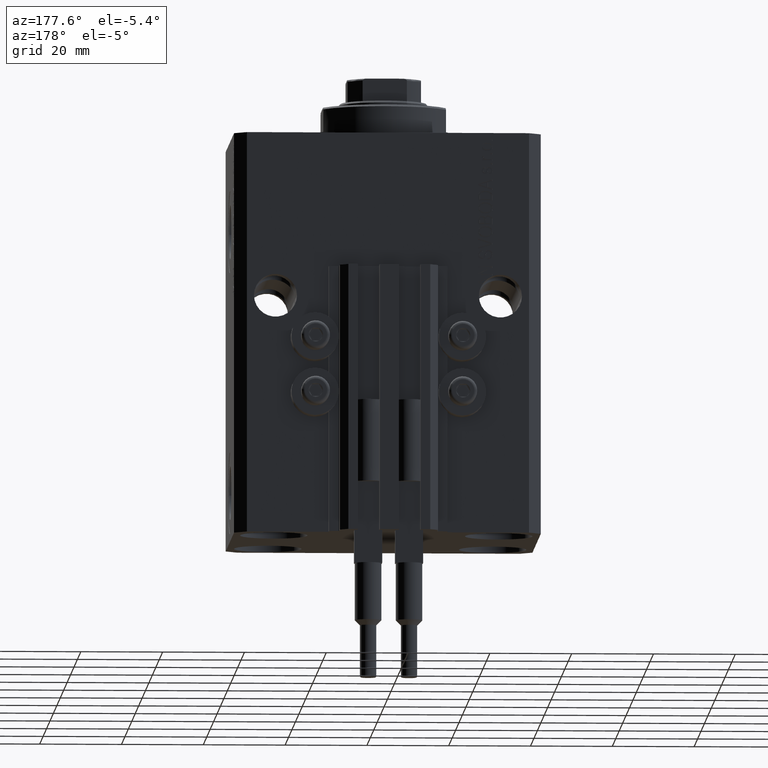
[diagram: clean part render]
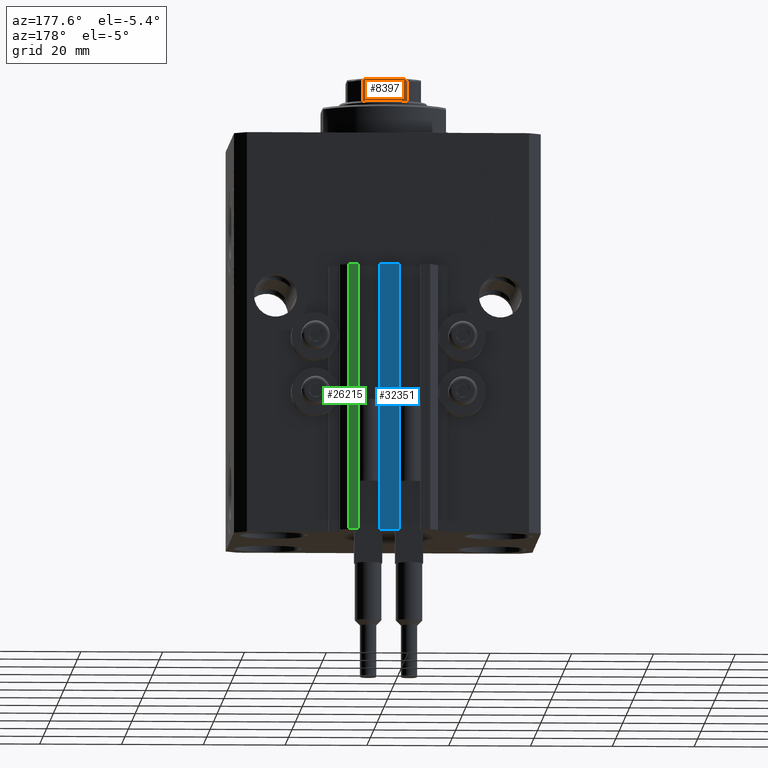
[diagram: same view with three faces highlighted in distinct colors, each labeled with its STEP entity id]
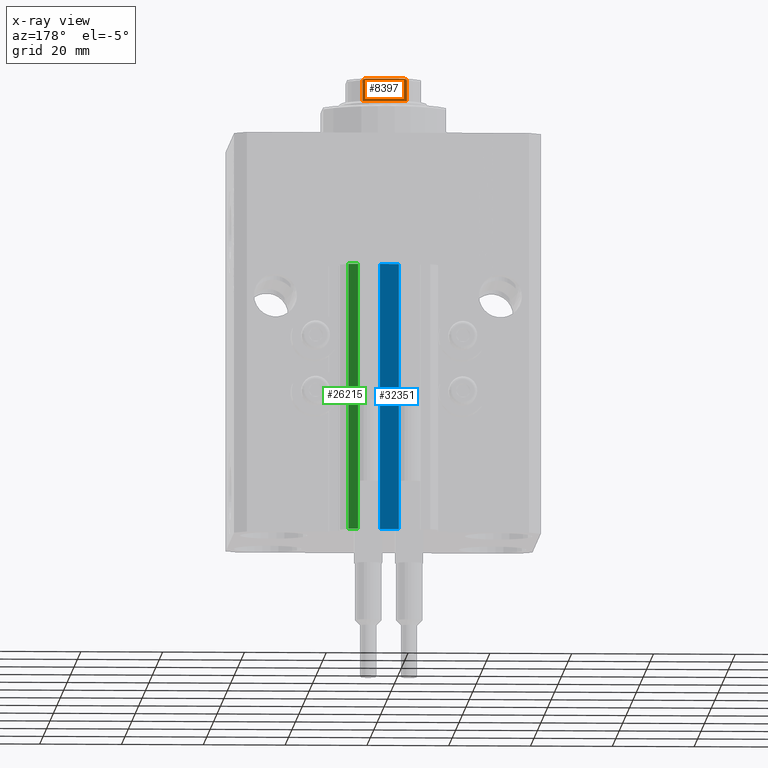
[diagram: x-ray of the same camera — body ghosted, the three highlighted faces saturated]
A machine part, auxiliary view with three faces highlighted in distinct colors.
The next image is the same camera in x-ray (body ghosted, the three faces saturated) — at least one of them is partly hidden behind the body in this view.
Their STEP definitions:

[orange] entity #8397 — the highlighted planar face has unit normal (0, -1, 0).
#708 = B_SPLINE_CURVE_WITH_KNOTS ( 'NONE', 3,
 ( #31251, #8113, #38319, #46111, #35148, #42211, #12732, #1058, #38807, #4942 ),
 .UNSPECIFIED., .F., .F.,
 ( 4, 2, 2, 2, 4 ),
 ( 0.000000000000000000, 0.0001582447020888231800, 0.0003164894041776463601, 0.0006329788083552646393, 0.001265957616710501089 ),
 .UNSPECIFIED. ) ;
#1058 = CARTESIAN_POINT ( 'NONE',  ( -4.778533838065923689, 8.999999999999998224, 103.0778291476469661 ) ) ;
#1096 = DIRECTION ( 'NONE',  ( -1.000000000000000000, -0.000000000000000000, -0.000000000000000000 ) ) ;
#1419 = VERTEX_POINT ( 'NONE', #16922 ) ;
#4942 = CARTESIAN_POINT ( 'NONE',  ( -4.358898943540678417, 8.999999999999998224, 103.0999999999999943 ) ) ;
#5106 = VERTEX_POINT ( 'NONE', #43547 ) ;
#5246 = B_SPLINE_CURVE_WITH_KNOTS ( 'NONE', 3,
 ( #16974, #28175, #31823, #46688, #42555, #35002, #9171, #25006, #38901, #6252 ),
 .UNSPECIFIED., .F., .F.,
 ( 4, 2, 2, 2, 4 ),
 ( 8.673617379884035472E-19, 0.0006221106941441109433, 0.0009331660412161594219, 0.001088693714752182740, 0.001244221388288205840 ),
 .UNSPECIFIED. ) ;
#5913 = VECTOR ( 'NONE', #46182, 1000.000000000000000 ) ;
#6252 = CARTESIAN_POINT ( 'NONE',  ( 5.408326913195989682, 8.999999999999998224, 102.5999999999999943 ) ) ;
#7632 = ORIENTED_EDGE ( 'NONE', *, *, #38409, .T. ) ;
#8113 = CARTESIAN_POINT ( 'NONE',  ( -5.408326913195988794, 8.999999999999998224, 102.6535720727334962 ) ) ;
#8331 = VERTEX_POINT ( 'NONE', #34657 ) ;
#8397 = ADVANCED_FACE ( 'NONE', ( #36095 ), #39993, .F. ) ;
#9171 = CARTESIAN_POINT ( 'NONE',  ( 5.335288102212754069, 8.999999999999996447, 102.7956905402761976 ) ) ;
#10275 = CARTESIAN_POINT ( 'NONE',  ( -9.000000000000000000, 8.999999999999998224, 103.0999999999999943 ) ) ;
#11795 = EDGE_CURVE ( 'NONE', #15571, #24802, #708, .T. ) ;
#12601 = EDGE_CURVE ( 'NONE', #8331, #5106, #13288, .T. ) ;
#12732 = CARTESIAN_POINT ( 'NONE',  ( -5.077896145217239088, 9.000000000000000000, 102.9773016776067038 ) ) ;
#13288 = LINE ( 'NONE', #35462, #5913 ) ;
#13618 = VERTEX_POINT ( 'NONE', #15939 ) ;
#15571 = VERTEX_POINT ( 'NONE', #33140 ) ;
#15939 = CARTESIAN_POINT ( 'NONE',  ( 4.358898943540677529, 8.999999999999998224, 103.0999999999999943 ) ) ;
#16408 = ORIENTED_EDGE ( 'NONE', *, *, #37112, .T. ) ;
#16922 = CARTESIAN_POINT ( 'NONE',  ( -5.408326913195986130, 8.999999999999998224, 97.60000000000000853 ) ) ;
#16974 = CARTESIAN_POINT ( 'NONE',  ( 4.358898943540677529, 8.999999999999998224, 103.0999999999999943 ) ) ;
#17075 = DIRECTION ( 'NONE',  ( -1.000000000000000000, -0.000000000000000000, -0.000000000000000000 ) ) ;
#18814 = ORIENTED_EDGE ( 'NONE', *, *, #22575, .T. ) ;
#20799 = LINE ( 'NONE', #31517, #44311 ) ;
#21714 = DIRECTION ( 'NONE',  ( 0.000000000000000000, -1.000000000000000000, 0.000000000000000000 ) ) ;
#22575 = EDGE_CURVE ( 'NONE', #1419, #15571, #20799, .T. ) ;
#22627 = VECTOR ( 'NONE', #17075, 1000.000000000000000 ) ;
#24707 = ORIENTED_EDGE ( 'NONE', *, *, #11795, .T. ) ;
#24802 = VERTEX_POINT ( 'NONE', #31223 ) ;
#25006 = CARTESIAN_POINT ( 'NONE',  ( 5.390945448132526074, 8.999999999999998224, 102.7054816538970528 ) ) ;
#25177 = DIRECTION ( 'NONE',  ( -0.000000000000000000, -0.000000000000000000, 1.000000000000000000 ) ) ;
#27045 = EDGE_LOOP ( 'NONE', ( #38819, #7632, #42643, #16408, #18814, #24707 ) ) ;
#28175 = CARTESIAN_POINT ( 'NONE',  ( 4.569272810556668674, 9.000000000000000000, 103.0999999999999943 ) ) ;
#29105 = EDGE_CURVE ( 'NONE', #13618, #24802, #41776, .T. ) ;
#29255 = AXIS2_PLACEMENT_3D ( 'NONE', #10275, #21714, #43889 ) ;
#31223 = CARTESIAN_POINT ( 'NONE',  ( -4.358898943540678417, 8.999999999999998224, 103.0999999999999943 ) ) ;
#31251 = CARTESIAN_POINT ( 'NONE',  ( -5.408326913195988794, 8.999999999999998224, 102.5999999999999943 ) ) ;
#31517 = CARTESIAN_POINT ( 'NONE',  ( -5.408326913195988794, 8.999999999999998224, -0.001000000000001000089 ) ) ;
#31823 = CARTESIAN_POINT ( 'NONE',  ( 4.775913644518301027, 8.999999999999998224, 103.0781460743083073 ) ) ;
#33140 = CARTESIAN_POINT ( 'NONE',  ( -5.408326913195988794, 8.999999999999998224, 102.5999999999999943 ) ) ;
#34463 = CARTESIAN_POINT ( 'NONE',  ( -9.000000000000000000, 8.999999999999998224, 103.0999999999999943 ) ) ;
#34657 = CARTESIAN_POINT ( 'NONE',  ( 5.408326913195989682, 8.999999999999998224, 97.60000000000000853 ) ) ;
#35002 = CARTESIAN_POINT ( 'NONE',  ( 5.297634495023393342, 8.999999999999998224, 102.8344228052779954 ) ) ;
#35148 = CARTESIAN_POINT ( 'NONE',  ( -5.298186678102094760, 8.999999999999998224, 102.8338781215004758 ) ) ;
#35462 = CARTESIAN_POINT ( 'NONE',  ( 5.408326913195989682, 8.999999999999998224, -0.001000000000001000089 ) ) ;
#36064 = LINE ( 'NONE', #43617, #22627 ) ;
#36095 = FACE_OUTER_BOUND ( 'NONE', #27045, .T. ) ;
#37112 = EDGE_CURVE ( 'NONE', #8331, #1419, #36064, .T. ) ;
#38319 = CARTESIAN_POINT ( 'NONE',  ( -5.390954572107327536, 8.999999999999996447, 102.7053628521399986 ) ) ;
#38409 = EDGE_CURVE ( 'NONE', #13618, #5106, #5246, .T. ) ;
#38807 = CARTESIAN_POINT ( 'NONE',  ( -4.569278586016989330, 8.999999999999996447, 103.0999999999999943 ) ) ;
#38819 = ORIENTED_EDGE ( 'NONE', *, *, #29105, .F. ) ;
#38901 = CARTESIAN_POINT ( 'NONE',  ( 5.408326913195986130, 8.999999999999998224, 102.6537434673188045 ) ) ;
#39993 = PLANE ( 'NONE',  #29255 ) ;
#41776 = LINE ( 'NONE', #34463, #47372 ) ;
#42211 = CARTESIAN_POINT ( 'NONE',  ( -5.174818616237128133, 9.000000000000000000, 102.9325218846533403 ) ) ;
#42555 = CARTESIAN_POINT ( 'NONE',  ( 5.173732970196573966, 9.000000000000000000, 102.9331808643799064 ) ) ;
#42643 = ORIENTED_EDGE ( 'NONE', *, *, #12601, .F. ) ;
#43547 = CARTESIAN_POINT ( 'NONE',  ( 5.408326913195989682, 8.999999999999998224, 102.5999999999999943 ) ) ;
#43617 = CARTESIAN_POINT ( 'NONE',  ( -9.000000000000000000, 8.999999999999998224, 97.59999999999999432 ) ) ;
#43889 = DIRECTION ( 'NONE',  ( 0.000000000000000000, -0.000000000000000000, -1.000000000000000000 ) ) ;
#44311 = VECTOR ( 'NONE', #25177, 1000.000000000000000 ) ;
#46111 = CARTESIAN_POINT ( 'NONE',  ( -5.335664150027726649, 8.999999999999998224, 102.7951843380012491 ) ) ;
#46182 = DIRECTION ( 'NONE',  ( -0.000000000000000000, -0.000000000000000000, 1.000000000000000000 ) ) ;
#46688 = CARTESIAN_POINT ( 'NONE',  ( 5.074490744525480324, 9.000000000000000000, 102.9787200784332555 ) ) ;
#47372 = VECTOR ( 'NONE', #1096, 1000.000000000000000 ) ;

[blue] entity #32351 — the highlighted planar face has unit normal (0, -1, 0).
#1154 = LINE ( 'NONE', #39381, #20423 ) ;
#1180 = EDGE_CURVE ( 'NONE', #45274, #10467, #1154, .T. ) ;
#2065 = DIRECTION ( 'NONE',  ( 1.000000000000000000, 0.000000000000000000, 0.000000000000000000 ) ) ;
#2301 = CARTESIAN_POINT ( 'NONE',  ( -2.350000000000003642, 35.50000000000001421, -33.00000000000000000 ) ) ;
#3144 = AXIS2_PLACEMENT_3D ( 'NONE', #13223, #8605, #20543 ) ;
#4735 = DIRECTION ( 'NONE',  ( 0.000000000000000000, 0.000000000000000000, 1.000000000000000000 ) ) ;
#4850 = VERTEX_POINT ( 'NONE', #12440 ) ;
#5128 = DIRECTION ( 'NONE',  ( 1.000000000000000000, 0.000000000000000000, 0.000000000000000000 ) ) ;
#5624 = ORIENTED_EDGE ( 'NONE', *, *, #1180, .T. ) ;
#5914 = ORIENTED_EDGE ( 'NONE', *, *, #41272, .F. ) ;
#8386 = CARTESIAN_POINT ( 'NONE',  ( 2.349999999999999645, 35.50000000000001421, -98.00000000000000000 ) ) ;
#8605 = DIRECTION ( 'NONE',  ( 0.000000000000000000, -1.000000000000000000, 0.000000000000000000 ) ) ;
#10467 = VERTEX_POINT ( 'NONE', #28375 ) ;
#12440 = CARTESIAN_POINT ( 'NONE',  ( 2.349999999999999645, 35.50000000000001421, -98.00000000000000000 ) ) ;
#13223 = CARTESIAN_POINT ( 'NONE',  ( -2.350000000000003642, 35.50000000000001421, -98.00000000000000000 ) ) ;
#15332 = ORIENTED_EDGE ( 'NONE', *, *, #42476, .T. ) ;
#16730 = DIRECTION ( 'NONE',  ( 0.000000000000000000, 0.000000000000000000, 1.000000000000000000 ) ) ;
#17130 = PLANE ( 'NONE',  #3144 ) ;
#18805 = VECTOR ( 'NONE', #5128, 1000.000000000000000 ) ;
#19471 = CARTESIAN_POINT ( 'NONE',  ( 2.349999999999999645, 35.50000000000001421, -33.00000000000000000 ) ) ;
#20423 = VECTOR ( 'NONE', #16730, 1000.000000000000000 ) ;
#20543 = DIRECTION ( 'NONE',  ( 0.000000000000000000, -0.000000000000000000, -1.000000000000000000 ) ) ;
#22025 = VECTOR ( 'NONE', #4735, 1000.000000000000000 ) ;
#22651 = EDGE_LOOP ( 'NONE', ( #15332, #5914, #25197, #5624 ) ) ;
#25197 = ORIENTED_EDGE ( 'NONE', *, *, #34382, .F. ) ;
#26204 = LINE ( 'NONE', #8386, #22025 ) ;
#28375 = CARTESIAN_POINT ( 'NONE',  ( -2.350000000000003642, 35.50000000000001421, -33.00000000000000000 ) ) ;
#31430 = CARTESIAN_POINT ( 'NONE',  ( -2.350000000000003642, 35.50000000000001421, -98.00000000000000000 ) ) ;
#32351 = ADVANCED_FACE ( 'NONE', ( #38327 ), #17130, .F. ) ;
#34382 = EDGE_CURVE ( 'NONE', #45274, #4850, #38506, .T. ) ;
#35343 = VERTEX_POINT ( 'NONE', #19471 ) ;
#35672 = LINE ( 'NONE', #2301, #45389 ) ;
#38327 = FACE_OUTER_BOUND ( 'NONE', #22651, .T. ) ;
#38506 = LINE ( 'NONE', #31430, #18805 ) ;
#39381 = CARTESIAN_POINT ( 'NONE',  ( -2.350000000000003642, 35.50000000000001421, -98.00000000000000000 ) ) ;
#41272 = EDGE_CURVE ( 'NONE', #4850, #35343, #26204, .T. ) ;
#42476 = EDGE_CURVE ( 'NONE', #10467, #35343, #35672, .T. ) ;
#43636 = CARTESIAN_POINT ( 'NONE',  ( -2.350000000000003642, 35.50000000000001421, -98.00000000000000000 ) ) ;
#45274 = VERTEX_POINT ( 'NONE', #43636 ) ;
#45389 = VECTOR ( 'NONE', #2065, 1000.000000000000000 ) ;

[green] entity #26215 — the highlighted planar face has unit normal (0, 1, 0).
#560 = EDGE_CURVE ( 'NONE', #6698, #37470, #10135, .T. ) ;
#628 = ORIENTED_EDGE ( 'NONE', *, *, #13638, .F. ) ;
#635 = EDGE_CURVE ( 'NONE', #37470, #40480, #40821, .T. ) ;
#754 = VERTEX_POINT ( 'NONE', #8149 ) ;
#825 = AXIS2_PLACEMENT_3D ( 'NONE', #45347, #33663, #7835 ) ;
#3062 = CARTESIAN_POINT ( 'NONE',  ( 7.649999999999998579, 35.50000000000001421, -98.00000000000000000 ) ) ;
#3361 = CARTESIAN_POINT ( 'NONE',  ( 7.649999999999998579, 35.50000000000001421, -98.00000000000000000 ) ) ;
#5955 = VECTOR ( 'NONE', #19601, 1000.000000000000000 ) ;
#6698 = VERTEX_POINT ( 'NONE', #25554 ) ;
#7835 = DIRECTION ( 'NONE',  ( 0.000000000000000000, 0.000000000000000000, 1.000000000000000000 ) ) ;
#8149 = CARTESIAN_POINT ( 'NONE',  ( 9.999999999999998224, 35.50000000000001421, -33.00000000000000000 ) ) ;
#10135 = LINE ( 'NONE', #42125, #22748 ) ;
#11192 = EDGE_CURVE ( 'NONE', #754, #40480, #18207, .T. ) ;
#13298 = CARTESIAN_POINT ( 'NONE',  ( 7.649999999999998579, 35.50000000000001421, -33.00000000000000000 ) ) ;
#13638 = EDGE_CURVE ( 'NONE', #6698, #754, #30797, .T. ) ;
#14546 = DIRECTION ( 'NONE',  ( -1.000000000000000000, 0.000000000000000000, 0.000000000000000000 ) ) ;
#16064 = EDGE_LOOP ( 'NONE', ( #42039, #628, #26678, #16880 ) ) ;
#16067 = DIRECTION ( 'NONE',  ( -1.000000000000000000, 0.000000000000000000, 0.000000000000000000 ) ) ;
#16880 = ORIENTED_EDGE ( 'NONE', *, *, #635, .T. ) ;
#18072 = VECTOR ( 'NONE', #18662, 1000.000000000000000 ) ;
#18207 = LINE ( 'NONE', #33052, #22984 ) ;
#18662 = DIRECTION ( 'NONE',  ( 0.000000000000000000, 0.000000000000000000, 1.000000000000000000 ) ) ;
#18819 = PLANE ( 'NONE',  #825 ) ;
#19601 = DIRECTION ( 'NONE',  ( 0.000000000000000000, 0.000000000000000000, 1.000000000000000000 ) ) ;
#22748 = VECTOR ( 'NONE', #16067, 1000.000000000000000 ) ;
#22984 = VECTOR ( 'NONE', #14546, 1000.000000000000000 ) ;
#25554 = CARTESIAN_POINT ( 'NONE',  ( 9.999999999999998224, 35.50000000000001421, -98.00000000000000000 ) ) ;
#26215 = ADVANCED_FACE ( 'NONE', ( #41213 ), #18819, .T. ) ;
#26678 = ORIENTED_EDGE ( 'NONE', *, *, #560, .T. ) ;
#30797 = LINE ( 'NONE', #45663, #5955 ) ;
#33052 = CARTESIAN_POINT ( 'NONE',  ( 9.999999999999998224, 35.50000000000001421, -33.00000000000000000 ) ) ;
#33663 = DIRECTION ( 'NONE',  ( 0.000000000000000000, 1.000000000000000000, -0.000000000000000000 ) ) ;
#37470 = VERTEX_POINT ( 'NONE', #3361 ) ;
#40480 = VERTEX_POINT ( 'NONE', #13298 ) ;
#40821 = LINE ( 'NONE', #3062, #18072 ) ;
#41213 = FACE_OUTER_BOUND ( 'NONE', #16064, .T. ) ;
#42039 = ORIENTED_EDGE ( 'NONE', *, *, #11192, .F. ) ;
#42125 = CARTESIAN_POINT ( 'NONE',  ( 9.999999999999998224, 35.50000000000001421, -98.00000000000000000 ) ) ;
#45347 = CARTESIAN_POINT ( 'NONE',  ( 9.999999999999998224, 35.50000000000001421, -98.00000000000000000 ) ) ;
#45663 = CARTESIAN_POINT ( 'NONE',  ( 9.999999999999998224, 35.50000000000001421, -98.00000000000000000 ) ) ;